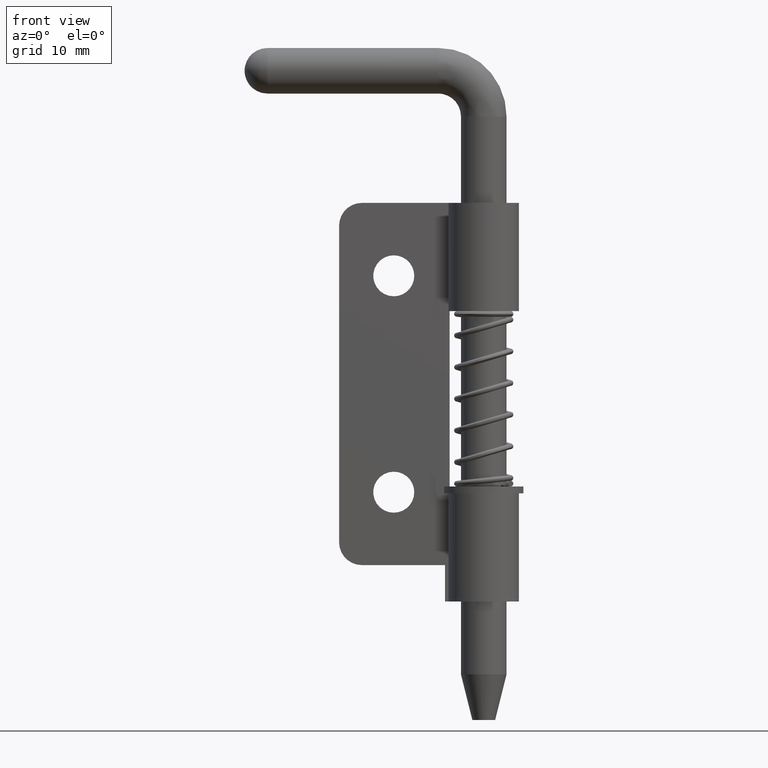
[diagram: clean part render]
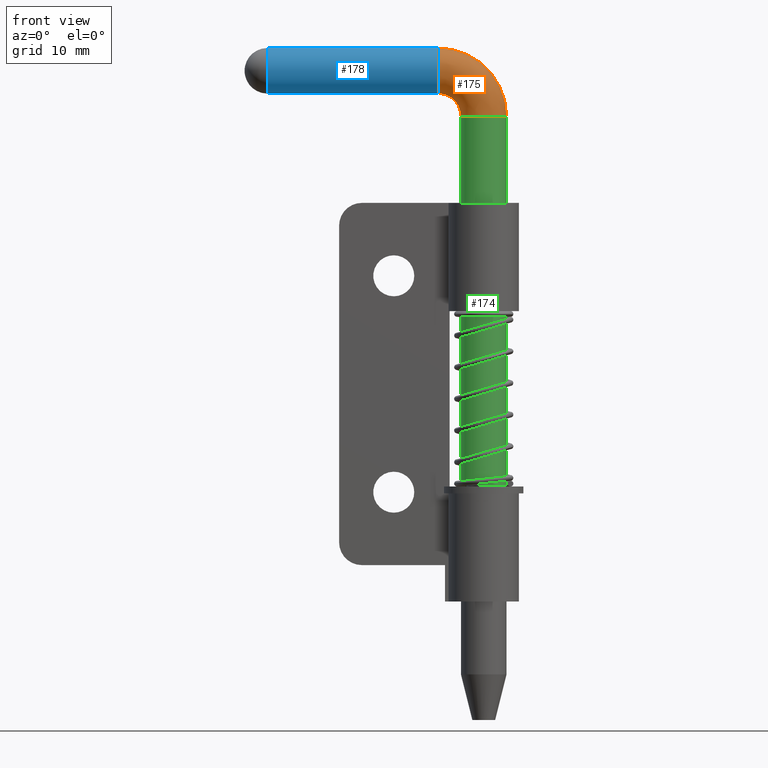
[diagram: same view with three faces highlighted in distinct colors, each labeled with its STEP entity id]
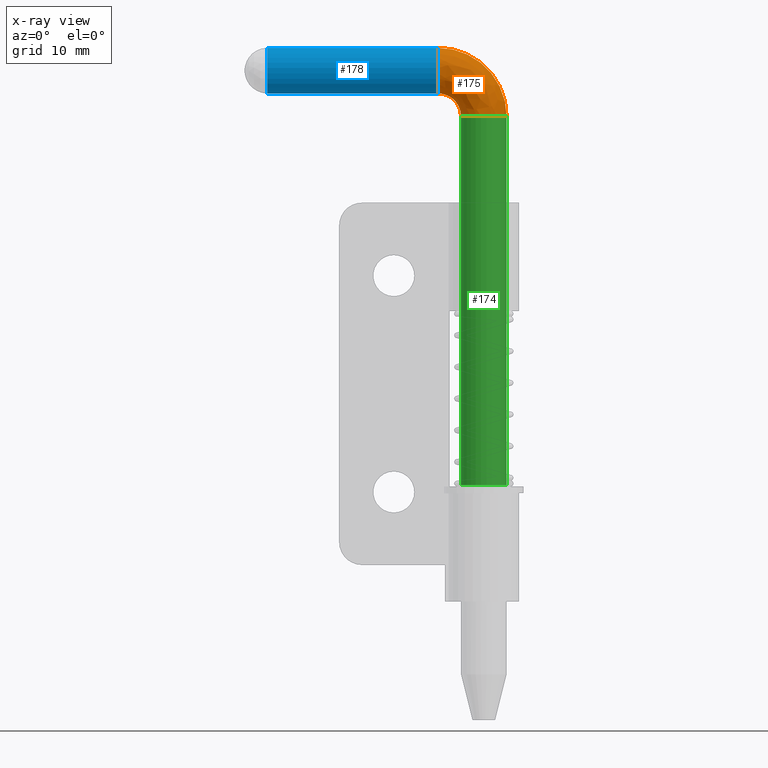
[diagram: x-ray of the same camera — body ghosted, the three highlighted faces saturated]
A machine part, front view with three faces highlighted in distinct colors.
The next image is the same camera in x-ray (body ghosted, the three faces saturated) — at least one of them is partly hidden behind the body in this view.
Their STEP definitions:

[orange] entity #175 — the highlighted face is a freeform B-spline surface patch.
#175=ADVANCED_FACE('',(#499),#498,.T.);
#498=( BOUNDED_SURFACE() B_SPLINE_SURFACE( 2,2,((#1253,#1254,#1255,#1256,#1257,#1258,#1259),(#1260,#1261,#1262,#1263,#1264,#1265,#1266),(#1267,#1268,#1269,#1270,#1271,#1272,#1273),(#1274,#1275,#1276,#1277,#1278,#1279,#1280),(#1281,#1282,#1283,#1284,#1285,#1286,#1287)), .UNSPECIFIED.,.F.,.F.,.F.) B_SPLINE_SURFACE_WITH_KNOTS((3,2,3),(3,2,2,3),(-3.14159265359E+00,-1.57079632679E+00,0.00000000000E+00),(1.56737575295E+00,1.57079632679E+00,3.14159265359E+00,3.14501322743E+00), .UNSPECIFIED. ) GEOMETRIC_REPRESENTATION_ITEM() RATIONAL_B_SPLINE_SURFACE(((9.98727166337E-01,9.99362194279E-01,1.00000000000E+00,7.07106781187E-01,1.00000000000E+00,9.99362194279E-01,9.98727166337E-01),(7.06206751872E-01,7.06655784436E-01,7.07106781187E-01,5.00000000000E-01,7.07106781187E-01,7.06655784436E-01,7.06206751872E-01),(9.98727166337E-01,9.99362194279E-01,1.00000000000E+00,7.07106781187E-01,1.00000000000E+00,9.99362194279E-01,9.98727166337E-01),(7.06206751872E-01,7.06655784436E-01,7.07106781187E-01,5.00000000000E-01,7.07106781187E-01,7.06655784436E-01,7.06206751872E-01),(9.98727166337E-01,9.99362194279E-01,1.00000000000E+00,7.07106781187E-01,1.00000000000E+00,9.99362194279E-01,9.98727166337E-01))) REPRESENTATION_ITEM('') SURFACE() );
#499=FACE_OUTER_BOUND('',#1288,.T.);
#1253=CARTESIAN_POINT('',(-2.00000949601E+00,-2.44921270764E-16,-6.16311313027E-03));
#1254=CARTESIAN_POINT('',(-2.00000000000E+00,-2.44921270764E-16,-3.08156388078E-03));
#1255=CARTESIAN_POINT('',(-2.00000000000E+00,-2.44921270764E-16,0.00000000000E+00));
#1256=CARTESIAN_POINT('',(-2.00000000000E+00,-2.44921270764E-16,2.00000000000E+00));
#1257=CARTESIAN_POINT('',(-4.00000000000E+00,-2.44921270764E-16,2.00000000000E+00));
#1258=CARTESIAN_POINT('',(-4.00308156388E+00,-2.44921270764E-16,2.00000000000E+00));
#1259=CARTESIAN_POINT('',(-4.00616311313E+00,-2.44921270764E-16,1.99999050399E+00));
#1260=CARTESIAN_POINT('',(-2.00000949601E+00,-2.00000000000E+00,-6.16311313027E-03));
#1261=CARTESIAN_POINT('',(-2.00000000000E+00,-2.00000000000E+00,-3.08156388078E-03));
#1262=CARTESIAN_POINT('',(-2.00000000000E+00,-2.00000000000E+00,0.00000000000E+00));
#1263=CARTESIAN_POINT('',(-2.00000000000E+00,-2.00000000000E+00,2.00000000000E+00));
#1264=CARTESIAN_POINT('',(-4.00000000000E+00,-2.00000000000E+00,2.00000000000E+00));
#1265=CARTESIAN_POINT('',(-4.00308156388E+00,-2.00000000000E+00,2.00000000000E+00));
#1266=CARTESIAN_POINT('',(-4.00616311313E+00,-2.00000000000E+00,1.99999050399E+00));
#1267=CARTESIAN_POINT('',(-1.89920268154E-05,-2.00000000000E+00,-1.23262262605E-02));
#1268=CARTESIAN_POINT('',(6.84244634458E-19,-2.00000000000E+00,-6.16312776155E-03));
#1269=CARTESIAN_POINT('',(0.00000000000E+00,-2.00000000000E+00,4.44089209850E-16));
#1270=CARTESIAN_POINT('',(-4.44089209850E-16,-2.00000000000E+00,4.00000000000E+00));
#1271=CARTESIAN_POINT('',(-4.00000000000E+00,-2.00000000000E+00,4.00000000000E+00));
#1272=CARTESIAN_POINT('',(-4.00616312776E+00,-2.00000000000E+00,4.00000000000E+00));
#1273=CARTESIAN_POINT('',(-4.01232622626E+00,-2.00000000000E+00,3.99998100797E+00));
#1274=CARTESIAN_POINT('',(1.99997151196E+00,-2.00000000000E+00,-1.84893393908E-02));
#1275=CARTESIAN_POINT('',(2.00000000000E+00,-2.00000000000E+00,-9.24469164233E-03));
#1276=CARTESIAN_POINT('',(2.00000000000E+00,-2.00000000000E+00,8.88178419700E-16));
#1277=CARTESIAN_POINT('',(2.00000000000E+00,-2.00000000000E+00,6.00000000000E+00));
#1278=CARTESIAN_POINT('',(-4.00000000000E+00,-2.00000000000E+00,6.00000000000E+00));
#1279=CARTESIAN_POINT('',(-4.00924469164E+00,-2.00000000000E+00,6.00000000000E+00));
#1280=CARTESIAN_POINT('',(-4.01848933939E+00,-2.00000000000E+00,5.99997151196E+00));
#1281=CARTESIAN_POINT('',(1.99997151196E+00,0.00000000000E+00,-1.84893393908E-02));
#1282=CARTESIAN_POINT('',(2.00000000000E+00,0.00000000000E+00,-9.24469164233E-03));
#1283=CARTESIAN_POINT('',(2.00000000000E+00,0.00000000000E+00,8.88178419700E-16));
#1284=CARTESIAN_POINT('',(2.00000000000E+00,0.00000000000E+00,6.00000000000E+00));
#1285=CARTESIAN_POINT('',(-4.00000000000E+00,0.00000000000E+00,6.00000000000E+00));
#1286=CARTESIAN_POINT('',(-4.00924469164E+00,0.00000000000E+00,6.00000000000E+00));
#1287=CARTESIAN_POINT('',(-4.01848933939E+00,0.00000000000E+00,5.99997151196E+00));
#1288=EDGE_LOOP('',(#3251,#3252,#3253,#3254));
#3251=ORIENTED_EDGE('',*,*,#3626,.F.);
#3252=ORIENTED_EDGE('',*,*,#3627,.F.);
#3253=ORIENTED_EDGE('',*,*,#3625,.F.);
#3254=ORIENTED_EDGE('',*,*,#3628,.T.);
#3625=EDGE_CURVE('',#4282,#4281,#4301,.T.);
#3626=EDGE_CURVE('',#4307,#4308,#4309,.T.);
#3627=EDGE_CURVE('',#4281,#4307,#4315,.T.);
#3628=EDGE_CURVE('',#4282,#4308,#4321,.T.);
#4281=VERTEX_POINT('',#5563);
#4282=VERTEX_POINT('',#5564);
#4301=CIRCLE('',#5576,2.00000000000E+00);
#4307=VERTEX_POINT('',#5577);
#4308=VERTEX_POINT('',#5578);
#4309=CIRCLE('',#5582,2.00000000011E+00);
#4315=(BOUNDED_CURVE() B_SPLINE_CURVE(2,(#5583,#5584,#5585),.UNSPECIFIED.,.F.,.F.) B_SPLINE_CURVE_WITH_KNOTS((3,3),(1.57079632679E+00,3.14159265359E+00),.UNSPECIFIED.) CURVE() GEOMETRIC_REPRESENTATION_ITEM() RATIONAL_B_SPLINE_CURVE((1.00000000000E+00,7.07106781187E-01,1.00000000000E+00)) REPRESENTATION_ITEM('') );
#4321=(BOUNDED_CURVE() B_SPLINE_CURVE(3,(#5586,#5587,#5588,#5589,#5590),.UNSPECIFIED.,.F.,.F.) B_SPLINE_CURVE_WITH_KNOTS((4,1,4),(1.57079632678E+00,2.35619449018E+00,3.14159265359E+00),.UNSPECIFIED.) CURVE() GEOMETRIC_REPRESENTATION_ITEM() RATIONAL_B_SPLINE_CURVE((1.00000000000E+00,1.00000000000E+00,1.00000000000E+00,1.00000000000E+00,1.00000000000E+00)) REPRESENTATION_ITEM('') );
#5563=CARTESIAN_POINT('',(-2.00000000000E+00,-2.22044604925E-16,0.00000000000E+00));
#5564=CARTESIAN_POINT('',(2.00000000000E+00,0.00000000000E+00,0.00000000000E+00));
#5573=CARTESIAN_POINT('',(0.00000000000E+00,0.00000000000E+00,0.00000000000E+00));
#5574=DIRECTION('',(0.00000000000E+00,0.00000000000E+00,-1.00000000000E+00));
#5575=DIRECTION('',(1.00000000000E+00,1.22460635382E-16,0.00000000000E+00));
#5576=AXIS2_PLACEMENT_3D('',#5573,#5574,#5575);
#5577=CARTESIAN_POINT('',(-4.00000000000E+00,2.22044604925E-16,1.99999999989E+00));
#5578=CARTESIAN_POINT('',(-4.00000000000E+00,0.00000000000E+00,6.00000000011E+00));
#5579=CARTESIAN_POINT('',(-4.00000000000E+00,0.00000000000E+00,4.00000000000E+00));
#5580=DIRECTION('',(-1.00000000000E+00,0.00000000000E+00,0.00000000000E+00));
#5581=DIRECTION('',(0.00000000000E+00,-1.22460635382E-16,1.00000000000E+00));
#5582=AXIS2_PLACEMENT_3D('',#5579,#5580,#5581);
#5583=CARTESIAN_POINT('',(-2.00000000000E+00,-2.44921270764E-16,0.00000000000E+00));
#5584=CARTESIAN_POINT('',(-2.00000000000E+00,-2.44921270764E-16,2.00000000000E+00));
#5585=CARTESIAN_POINT('',(-4.00000000000E+00,-2.44921270764E-16,2.00000000000E+00));
#5586=CARTESIAN_POINT('',(2.00000000000E+00,0.00000000000E+00,-9.90138525439E-11));
#5587=CARTESIAN_POINT('',(2.01457790693E+00,0.00000000000E+00,1.56386587517E+00));
#5588=CARTESIAN_POINT('',(6.96059483210E-01,0.00000000000E+00,4.69605948314E+00));
#5589=CARTESIAN_POINT('',(-2.43613412474E+00,0.00000000000E+00,6.01457790690E+00));
#5590=CARTESIAN_POINT('',(-4.00000000001E+00,0.00000000000E+00,6.00000000000E+00));

[blue] entity #178 — the highlighted cylindrical surface (edge-blend (fillet) strip) has radius 2 mm, axis along (1, 0, 0).
#178=ADVANCED_FACE('',(#529),#528,.T.);
#528=CYLINDRICAL_SURFACE('',#1323,2.00000000011E+00);
#529=FACE_OUTER_BOUND('',#1324,.T.);
#1320=CARTESIAN_POINT('',(0.00000000000E+00,0.00000000000E+00,4.00000000000E+00));
#1321=DIRECTION('',(1.00000000000E+00,-0.00000000000E+00,-0.00000000000E+00));
#1322=DIRECTION('',(0.00000000000E+00,0.00000000000E+00,-1.00000000000E+00));
#1323=AXIS2_PLACEMENT_3D('',#1320,#1321,#1322);
#1324=EDGE_LOOP('',(#3263,#3264,#3265,#3266));
#3263=ORIENTED_EDGE('',*,*,#3633,.F.);
#3264=ORIENTED_EDGE('',*,*,#3630,.T.);
#3265=ORIENTED_EDGE('',*,*,#3626,.T.);
#3266=ORIENTED_EDGE('',*,*,#3632,.F.);
#3626=EDGE_CURVE('',#4307,#4308,#4309,.T.);
#3630=EDGE_CURVE('',#4333,#4307,#4334,.T.);
#3632=EDGE_CURVE('',#4340,#4308,#4347,.T.);
#3633=EDGE_CURVE('',#4333,#4340,#4353,.T.);
#4307=VERTEX_POINT('',#5577);
#4308=VERTEX_POINT('',#5578);
#4309=CIRCLE('',#5582,2.00000000011E+00);
#4333=VERTEX_POINT('',#5595);
#4334=(BOUNDED_CURVE() B_SPLINE_CURVE(1,(#5596,#5597),.UNSPECIFIED.,.F.,.F.) B_SPLINE_CURVE_WITH_KNOTS((2,2),(8.33333328360E-02,9.16666666871E-01),.UNSPECIFIED.) CURVE() GEOMETRIC_REPRESENTATION_ITEM() RATIONAL_B_SPLINE_CURVE((1.00000000000E+00,1.00000000000E+00)) REPRESENTATION_ITEM('') );
#4340=VERTEX_POINT('',#5598);
#4347=(BOUNDED_CURVE() B_SPLINE_CURVE(1,(#5603,#5604),.UNSPECIFIED.,.F.,.F.) B_SPLINE_CURVE_WITH_KNOTS((2,2),(8.33333333333E-02,9.16666666667E-01),.UNSPECIFIED.) CURVE() GEOMETRIC_REPRESENTATION_ITEM() RATIONAL_B_SPLINE_CURVE((7.50000000000E-01,7.50000000000E-01)) REPRESENTATION_ITEM('') );
#4353=CIRCLE('',#5608,2.00000000011E+00);
#5577=CARTESIAN_POINT('',(-4.00000000000E+00,2.22044604925E-16,1.99999999989E+00));
#5578=CARTESIAN_POINT('',(-4.00000000000E+00,0.00000000000E+00,6.00000000011E+00));
#5579=CARTESIAN_POINT('',(-4.00000000000E+00,0.00000000000E+00,4.00000000000E+00));
#5580=DIRECTION('',(-1.00000000000E+00,0.00000000000E+00,0.00000000000E+00));
#5581=DIRECTION('',(0.00000000000E+00,-1.22460635382E-16,1.00000000000E+00));
#5582=AXIS2_PLACEMENT_3D('',#5579,#5580,#5581);
#5595=CARTESIAN_POINT('',(-1.90000000000E+01,2.22044604925E-16,1.99999999989E+00));
#5596=CARTESIAN_POINT('',(-1.90000000090E+01,0.00000000000E+00,1.99999999989E+00));
#5597=CARTESIAN_POINT('',(-3.99999999633E+00,0.00000000000E+00,1.99999999989E+00));
#5598=CARTESIAN_POINT('',(-1.90000000000E+01,0.00000000000E+00,6.00000000011E+00));
#5603=CARTESIAN_POINT('',(-1.90000000000E+01,-7.40148683083E-17,6.00000000011E+00));
#5604=CARTESIAN_POINT('',(-4.00000000000E+00,-7.40148683083E-17,6.00000000011E+00));
#5605=CARTESIAN_POINT('',(-1.90000000000E+01,0.00000000000E+00,4.00000000000E+00));
#5606=DIRECTION('',(-1.00000000000E+00,0.00000000000E+00,0.00000000000E+00));
#5607=DIRECTION('',(0.00000000000E+00,-1.22460635382E-16,1.00000000000E+00));
#5608=AXIS2_PLACEMENT_3D('',#5605,#5606,#5607);

[green] entity #174 — the highlighted cylindrical surface (edge-blend (fillet) strip) has radius 2 mm, axis along (0, 0, 1).
#174=ADVANCED_FACE('',(#489),#488,.T.);
#488=CYLINDRICAL_SURFACE('',#1251,2.00000000000E+00);
#489=FACE_OUTER_BOUND('',#1252,.T.);
#1248=CARTESIAN_POINT('',(0.00000000000E+00,0.00000000000E+00,0.00000000000E+00));
#1249=DIRECTION('',(0.00000000000E+00,-0.00000000000E+00,1.00000000000E+00));
#1250=DIRECTION('',(1.00000000000E+00,0.00000000000E+00,0.00000000000E+00));
#1251=AXIS2_PLACEMENT_3D('',#1248,#1249,#1250);
#1252=EDGE_LOOP('',(#3247,#3248,#3249,#3250));
#3247=ORIENTED_EDGE('',*,*,#3562,.F.);
#3248=ORIENTED_EDGE('',*,*,#3623,.T.);
#3249=ORIENTED_EDGE('',*,*,#3625,.T.);
#3250=ORIENTED_EDGE('',*,*,#3624,.F.);
#3562=EDGE_CURVE('',#3880,#3879,#3887,.T.);
#3623=EDGE_CURVE('',#3880,#4282,#4289,.T.);
#3624=EDGE_CURVE('',#3879,#4281,#4295,.T.);
#3625=EDGE_CURVE('',#4282,#4281,#4301,.T.);
#3879=VERTEX_POINT('',#5313);
#3880=VERTEX_POINT('',#5314);
#3887=CIRCLE('',#5322,2.00000000000E+00);
#4281=VERTEX_POINT('',#5563);
#4282=VERTEX_POINT('',#5564);
#4289=(BOUNDED_CURVE() B_SPLINE_CURVE(1,(#5569,#5570),.UNSPECIFIED.,.F.,.F.) B_SPLINE_CURVE_WITH_KNOTS((2,2),(8.33333335810E-02,9.16666666255E-01),.UNSPECIFIED.) CURVE() GEOMETRIC_REPRESENTATION_ITEM() RATIONAL_B_SPLINE_CURVE((1.00000000000E+00,1.00000000000E+00)) REPRESENTATION_ITEM('') );
#4295=(BOUNDED_CURVE() B_SPLINE_CURVE(1,(#5571,#5572),.UNSPECIFIED.,.F.,.F.) B_SPLINE_CURVE_WITH_KNOTS((2,2),(8.33333333333E-02,9.16666666667E-01),.UNSPECIFIED.) CURVE() GEOMETRIC_REPRESENTATION_ITEM() RATIONAL_B_SPLINE_CURVE((7.50000000000E-01,7.50000000000E-01)) REPRESENTATION_ITEM('') );
#4301=CIRCLE('',#5576,2.00000000000E+00);
#5313=CARTESIAN_POINT('',(-2.00000000000E+00,0.00000000000E+00,-3.24000000000E+01));
#5314=CARTESIAN_POINT('',(2.00000000000E+00,2.22044604925E-16,-3.24000000000E+01));
#5319=CARTESIAN_POINT('',(0.00000000000E+00,0.00000000000E+00,-3.24000000000E+01));
#5320=DIRECTION('',(-0.00000000000E+00,0.00000000000E+00,-1.00000000000E+00));
#5321=DIRECTION('',(-1.00000000000E+00,-1.22460635382E-16,0.00000000000E+00));
#5322=AXIS2_PLACEMENT_3D('',#5319,#5320,#5321);
#5563=CARTESIAN_POINT('',(-2.00000000000E+00,-2.22044604925E-16,0.00000000000E+00));
#5564=CARTESIAN_POINT('',(2.00000000000E+00,0.00000000000E+00,0.00000000000E+00));
#5569=CARTESIAN_POINT('',(2.00000000000E+00,0.00000000000E+00,-3.23999999904E+01));
#5570=CARTESIAN_POINT('',(2.00000000000E+00,0.00000000000E+00,-1.59906461406E-08));
#5571=CARTESIAN_POINT('',(-2.00000000000E+00,-7.40148683083E-17,-3.24000000000E+01));
#5572=CARTESIAN_POINT('',(-2.00000000000E+00,-7.40148683083E-17,5.92118946467E-16));
#5573=CARTESIAN_POINT('',(0.00000000000E+00,0.00000000000E+00,0.00000000000E+00));
#5574=DIRECTION('',(0.00000000000E+00,0.00000000000E+00,-1.00000000000E+00));
#5575=DIRECTION('',(1.00000000000E+00,1.22460635382E-16,0.00000000000E+00));
#5576=AXIS2_PLACEMENT_3D('',#5573,#5574,#5575);